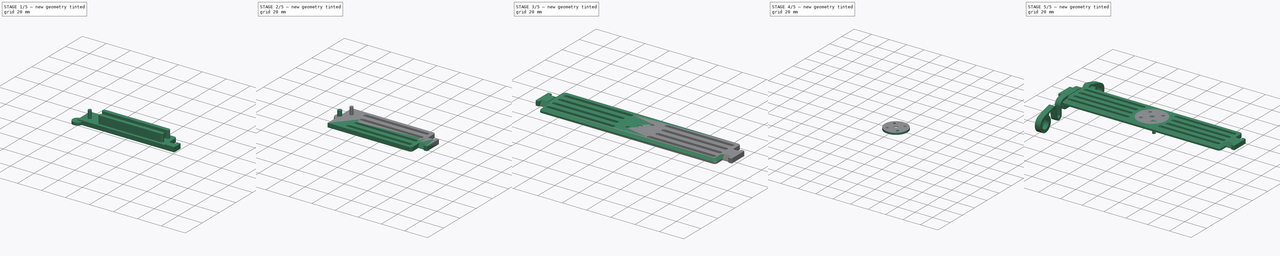
[diagram: build sequence overview — one tinted view per stage of 5, left to right]
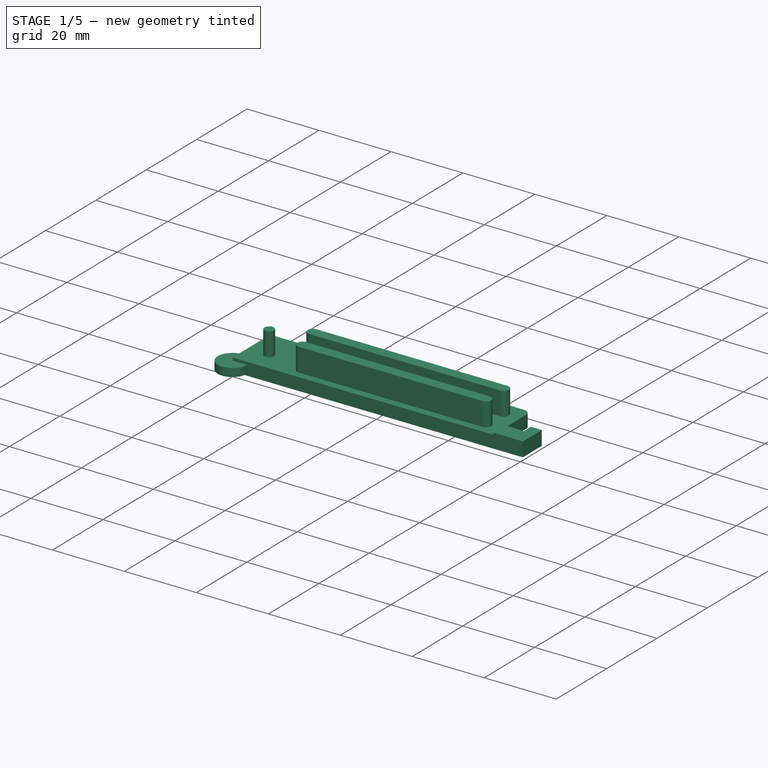
[diagram: stage 1 of 5 — iso view after this stage's code; geometry added in this stage tinted green]
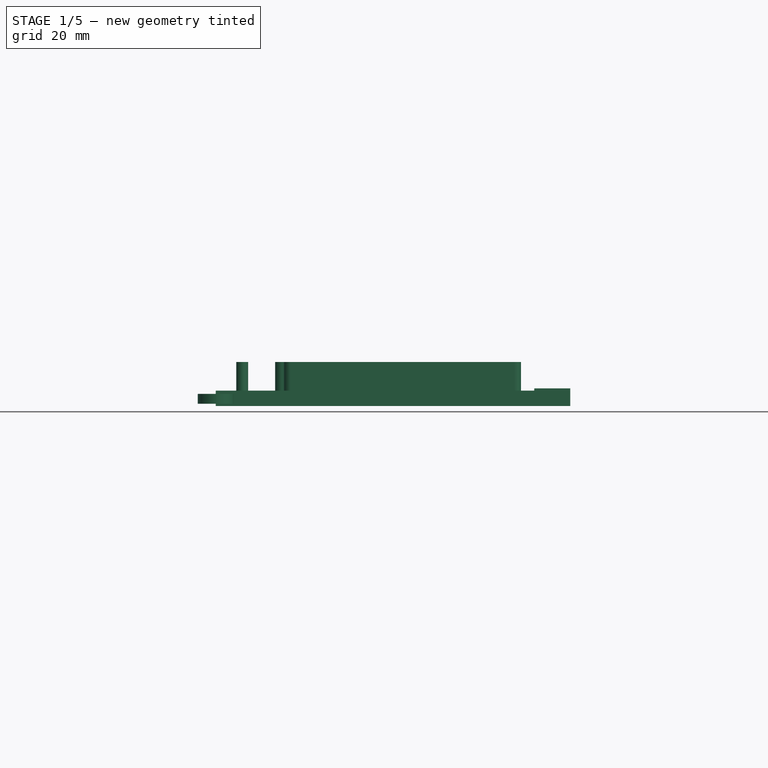
[diagram: stage 1 of 5 — front view after this stage's code; geometry added in this stage tinted green]
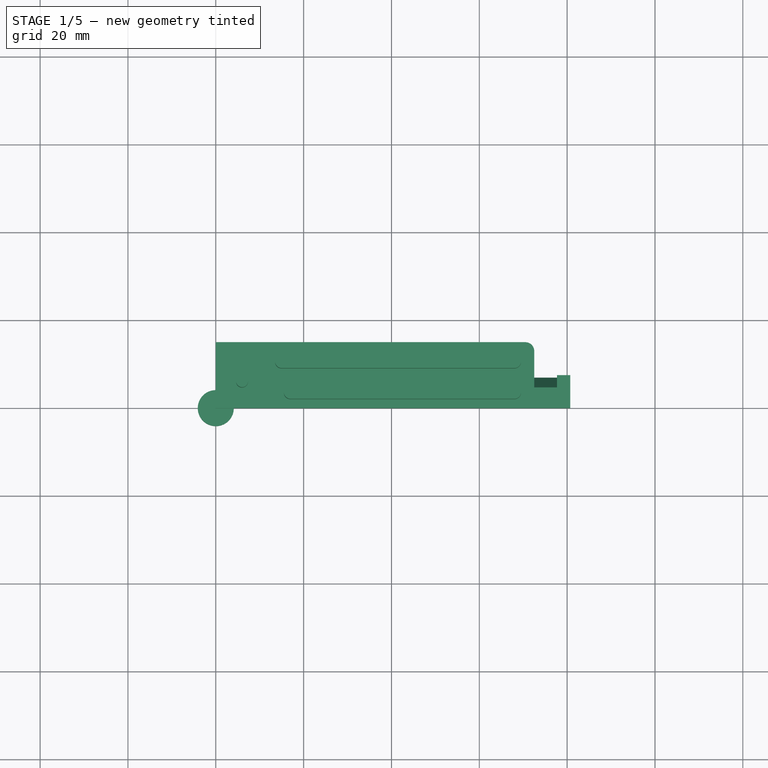
[diagram: stage 1 of 5 — top view after this stage's code; geometry added in this stage tinted green]
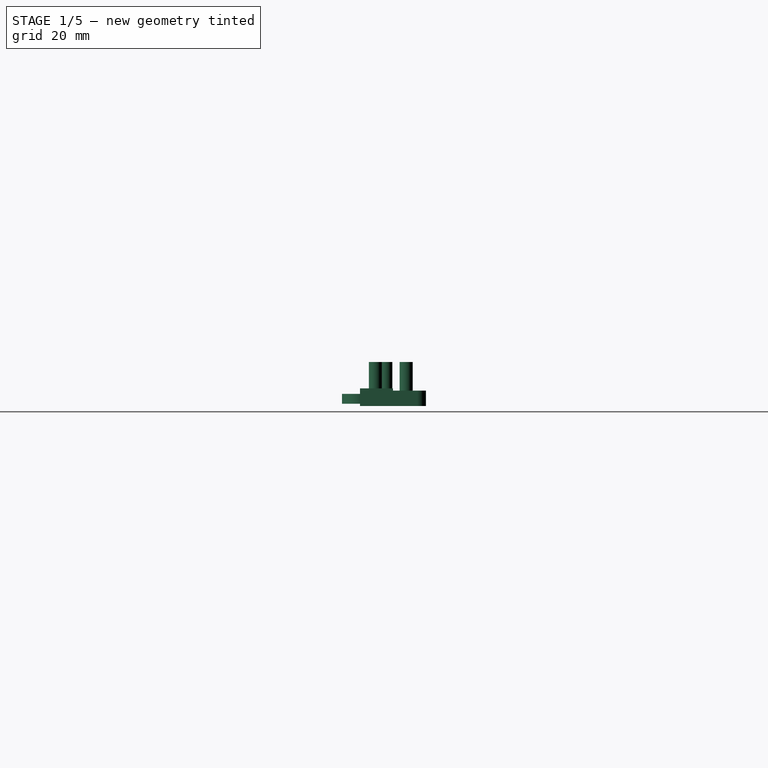
[diagram: stage 1 of 5 — right view after this stage's code; geometry added in this stage tinted green]
FCSTD DOCUMENT  (FreeCAD 0.16RUnknown)
Label: Adaptor
License: All rights reserved
LicenseURL: http://en.wikipedia.org/wiki/All_rights_reserved
objects: Part::FeaturePython×11, Part::Cut×9, Sketcher::SketchObject×6, Part::Mirroring×6, App::DocumentObjectGroup×4, PartDesign::Pad×3, Part::MultiFuse×3, PartDesign::Revolution×3, Part::Cylinder×3, Part::Feature×2, Part::Fillet×2, Spreadsheet::Sheet×1, PartDesign::Draft×1, Part::Chamfer×1, Part::MultiCommon×1
note: 57 computed .brp shape members not serialized (recipe doc carries the construction recipe); baked Part::Feature solids carry a one-line shape summary decoded from their .brp

FEATURE [Spreadsheet::Sheet] Spreadsheet  label="pars"
  cells = A1=Bolts and Nuts; B1=Value; D1=Components; E1=Value; A2=Thread Tight Tolerance (Radius, ratio); B2(ThrTighRatio)=0.96; D2=Tight Cilinder Tolerances (Radius, mm); E2(CilTight)=0.15; A3=Thread Tight Tolerance (Radius, mm); B3(ThrTightmm)=0.1; D3=Loose Cilinder Tolerances (Radius, mm); E3(CilLoose)=0.1; A5=Nut Slot Width Clearance (mm); B5(NutWidthClearmm)=0.1; A6=Nut Slot Thickess Clearance (mm); B6(NutThickClearmm)=0.1; A13=Particular parameters; B13=Value; A14=Plate Thickness; B14(PlateThick)=3.5; A15=Back Clearance; B15(BackClear)=0.2; A16=Lens Fit Tolerance; B16(LensFitTol)=0.1
FEATURE [Sketcher::SketchObject] Sketch002  label="Base"
  sketch-geometry (4):
    g0: LineSegment StartX=72.5 StartY=15 StartZ=0 EndX=0 EndY=15 EndZ=0
    g1: LineSegment StartX=0 StartY=15 StartZ=0 EndX=0 EndY=0 EndZ=0
    g2: LineSegment StartX=0 StartY=0 StartZ=0 EndX=72.5 EndY=0 EndZ=0
    g3: LineSegment StartX=72.5 StartY=0 StartZ=0 EndX=72.5 EndY=15 EndZ=0
  constraints (11):
    c: Coincident(g0,g1)
    c: Coincident(g1,g2)
    c: Coincident(g2,g3)
    c: Coincident(g3,g0)
    c: Horizontal(g0)
    c: Horizontal(g2)
    c: Vertical(g1)
    c: Vertical(g3)
    c: Coincident(g1,g-1)
    c: DistanceX(g2,g2) = 72.5
    c: DistanceY(g1,g1) = 15
FEATURE [PartDesign::Pad] Pad  label="Base001"
  Length = 3.5
  Length2 = 100
  Sketch = -> Sketch002
  Type = 0
  expr: Length = pars.PlateThick
FEATURE [PartDesign::Pad] Pad001  label="Fit001"
  Length = 4
  Length2 = 100
  Sketch = -> Sketch
  Type = 0
FEATURE [Part::Fillet] Fillet001  label="NiceFillet"
  Base = -> Pad
  Edges = 1 edges r=2: [Edge1]
FEATURE [Part::Feature] Clone001005001  label="PhoneArm001"
  Placement = pos=(72,0,-10) rot=(0,0,1;0rad)
  shape: bbox 14.86 x 94 x 27.68 mm, 99 faces (baked)
FEATURE [PartDesign::Draft] Draft001  label="FitDraft"
  Angle = 30
  Base = -> Pad001 [Face2]
  NeutralPlane = -> Pad001 [Face7]
  Reversed = true
FEATURE [Part::Cylinder] Cylinder001  label="LensFit"
  Angle = 360
  Height = 2.25
  Placement = pos=(0,0,0.5) rot=(0,0,1;0rad)
  Radius = 4.1
  expr: Radius = pars.LensFitTol + 4
FEATURE [Sketcher::SketchObject] Sketch006  label="MaterialReduction"
  sketch-geometry (9):
    g0: ArcOfCircle CenterX=15 CenterY=10.5 CenterZ=0 NormalX=0 NormalY=0 NormalZ=1 Radius=1.5 StartAngle=1.5708 EndAngle=4.71239
    g1: ArcOfCircle CenterX=68 CenterY=10.5 CenterZ=0 NormalX=0 NormalY=0 NormalZ=1 Radius=1.5 StartAngle=4.71239 EndAngle=7.85398
    g2: LineSegment StartX=15 StartY=9 StartZ=0 EndX=68 EndY=9 EndZ=0
    g3: LineSegment StartX=15 StartY=12 StartZ=0 EndX=68 EndY=12 EndZ=0
    g4: ArcOfCircle CenterX=17 CenterY=3.5 CenterZ=0 NormalX=0 NormalY=0 NormalZ=1 Radius=1.5 StartAngle=1.5708 EndAngle=4.71239
    g5: ArcOfCircle CenterX=68 CenterY=3.5 CenterZ=0 NormalX=0 NormalY=0 NormalZ=1 Radius=1.5 StartAngle=4.71239 EndAngle=7.85398
    g6: LineSegment StartX=17 StartY=2 StartZ=0 EndX=68 EndY=2 EndZ=0
    g7: LineSegment StartX=17 StartY=5 StartZ=0 EndX=68 EndY=5 EndZ=0
    g8: LineSegment [constr] StartX=68 StartY=10.5 StartZ=0 EndX=68 EndY=3.5 EndZ=0
  constraints (22):
    c: Tangent(g0,g3) = 1.5708
    c: Tangent(g0,g2) = -1.5708
    c: Tangent(g2,g1) = -1.5708
    c: Tangent(g3,g1) = 1.5708
    c: Horizontal(g2)
    c: Equal(g0,g1)
    c: Tangent(g4,g7) = 1.5708
    c: Tangent(g4,g6) = -1.5708
    c: Tangent(g6,g5) = -1.5708
    c: Tangent(g7,g5) = 1.5708
    c: Horizontal(g6)
    c: Equal(g4,g5)
    c: Equal(g1,g5)
    c: Vertical(g8)
    c: Coincident(g1,g8)
    c: Coincident(g5,g8)
    c: DistanceX(g5) = 68
    c: DistanceY(g5) = 3.5
    c: DistanceY(g8,g8) = 7
    c: Radius(g0) = 1.5
    c: DistanceX(g4) = 17
    c: DistanceX(g0) = 15
FEATURE [PartDesign::Pad] Pad002  label="MaterialReduction001"
  Length = 10
  Length2 = 100
  Sketch = -> Sketch006
  Type = 0
FEATURE [Part::FeaturePython] Clone001005007  label="Clone of LensFit"  # Draft clone (typed FeaturePython)
  Objects = -> [Cylinder001]
  Placement = pos=(0,0,0.5) rot=(0,0,1;0rad)
  Scale = (1,1,1)
FEATURE [Part::Cylinder] Cylinder002  label="DIN913"
  Angle = 360
  Height = 10
  Radius = 1.35
  expr: Radius = 1.5 - pars.CilTight
FEATURE [App::DocumentObjectGroup] Group001  label="Component_src"
  Group = -> [Revolution001,Revolution002,Cylinder002]
FEATURE [Part::FeaturePython] Clone001005008  label="Clone of DIN913"  # Draft clone (typed FeaturePython)
  Objects = -> [Cylinder002]
  Placement = pos=(6,6,0) rot=(0,0,1;0rad)
  Scale = (1,1,1)
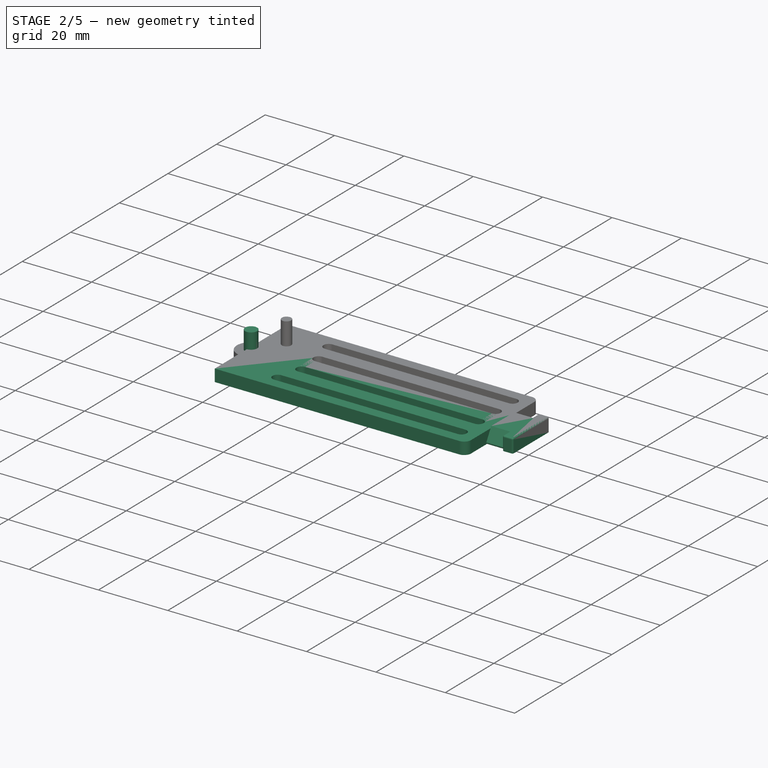
[diagram: stage 2 of 5 — iso view after this stage's code; geometry added in this stage tinted green]
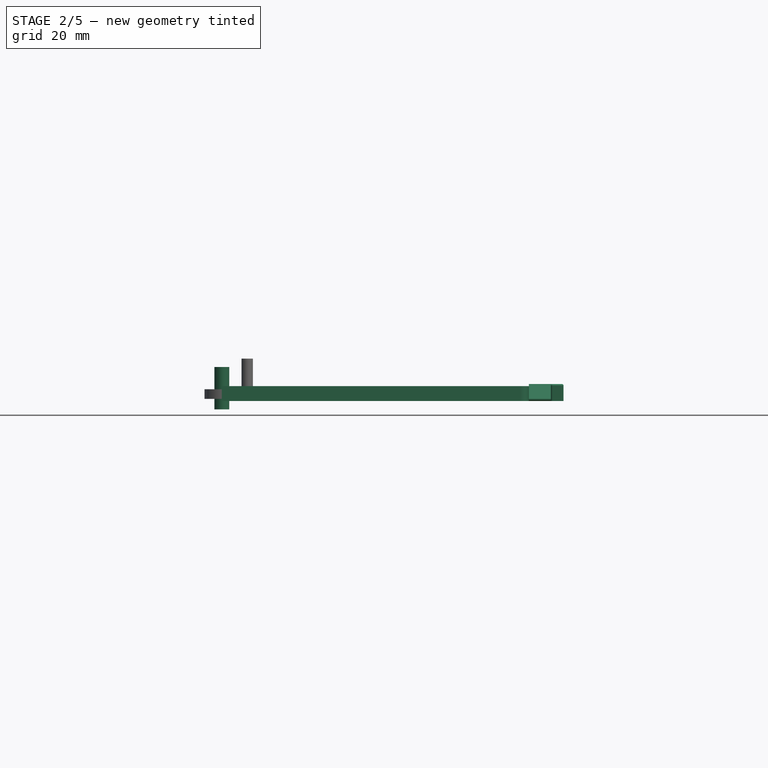
[diagram: stage 2 of 5 — front view after this stage's code; geometry added in this stage tinted green]
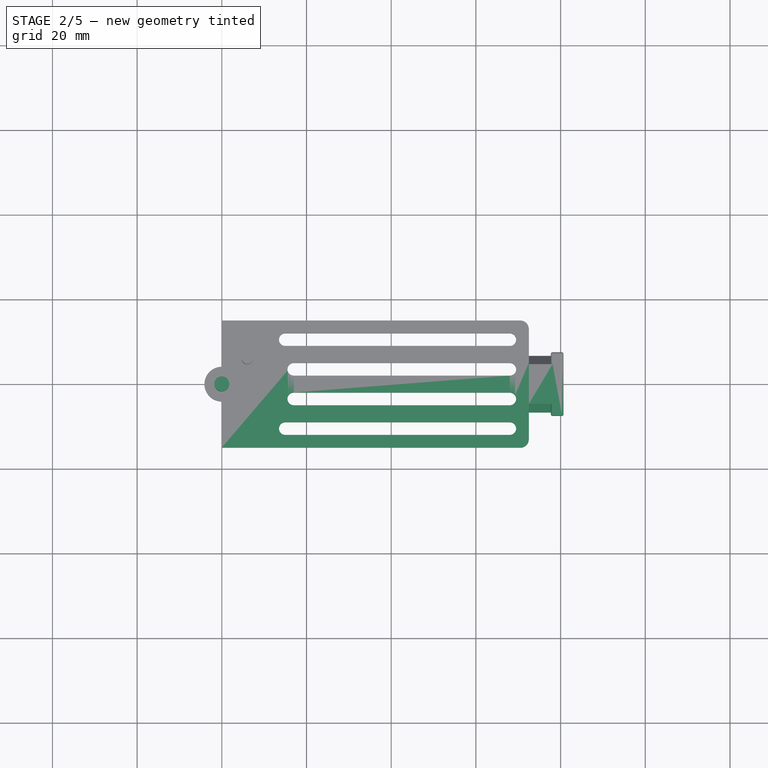
[diagram: stage 2 of 5 — top view after this stage's code; geometry added in this stage tinted green]
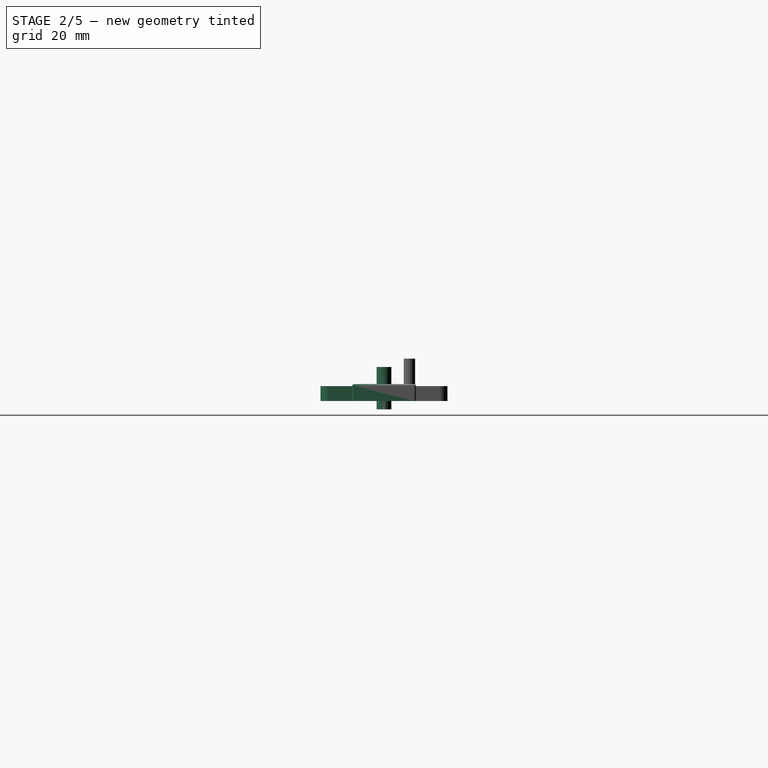
[diagram: stage 2 of 5 — right view after this stage's code; geometry added in this stage tinted green]
FEATURE [Part::Fillet] Fillet  label="FitFillet"
  Base = -> Draft001
  Edges = 6 edges r=0.4: [Edge6,Edge8,Edge10,Edge11,Edge13,Edge16]
FEATURE [Part::MultiFuse] Fusion  label="PadAdd"
  Shapes = -> [Fillet001,Fillet]
FEATURE [Part::FeaturePython] refine  label="refine_PadAdd"  # WARN: FeaturePython — macro-defined, semantics opaque (R4)
  Base = -> Fusion
FEATURE [Part::Cylinder] Cylinder  label="Channel"
  Angle = 360
  Height = 10
  Placement = pos=(0,0,-2) rot=(0,0,1;0rad)
  Radius = 1.75
FEATURE [Part::Cut] Cut007  label="MRCut"
  Base = -> refine
  Tool = -> Pad002
FEATURE [Part::Mirroring] Part__Mirroring010  label="MRCut (Mirror #7)"
  Base = (0,0,0)
  Normal = (0,1,0)
  Source = -> Cut007
FEATURE [Part::MultiFuse] Fusion007  label="YMirror"
  Shapes = -> [Part__Mirroring010,Cut007]
FEATURE [Part::FeaturePython] refine001  label="refine_YMirror"  # WARN: FeaturePython — macro-defined, semantics opaque (R4)
  Base = -> Fusion007
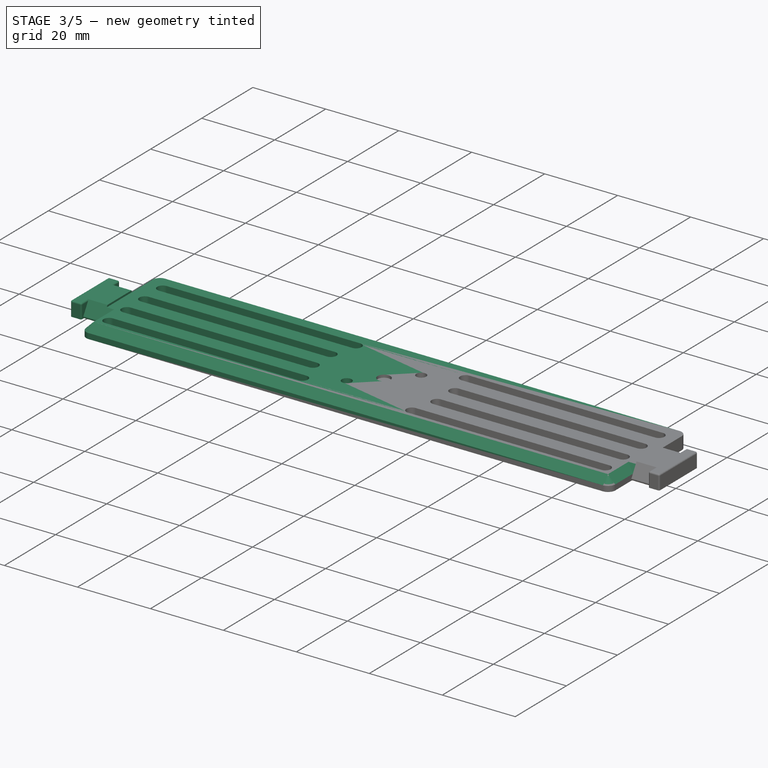
[diagram: stage 3 of 5 — iso view after this stage's code; geometry added in this stage tinted green]
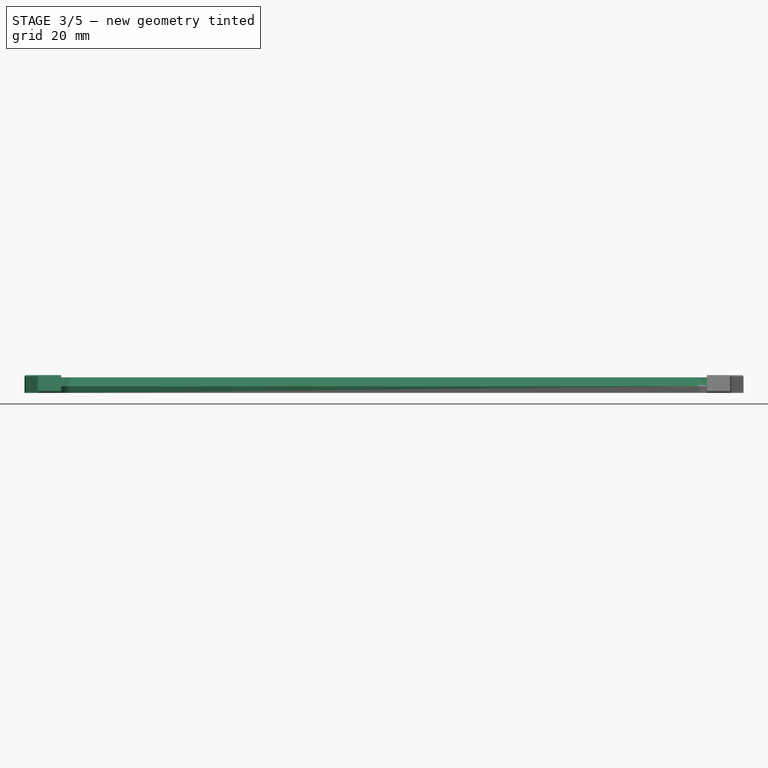
[diagram: stage 3 of 5 — front view after this stage's code; geometry added in this stage tinted green]
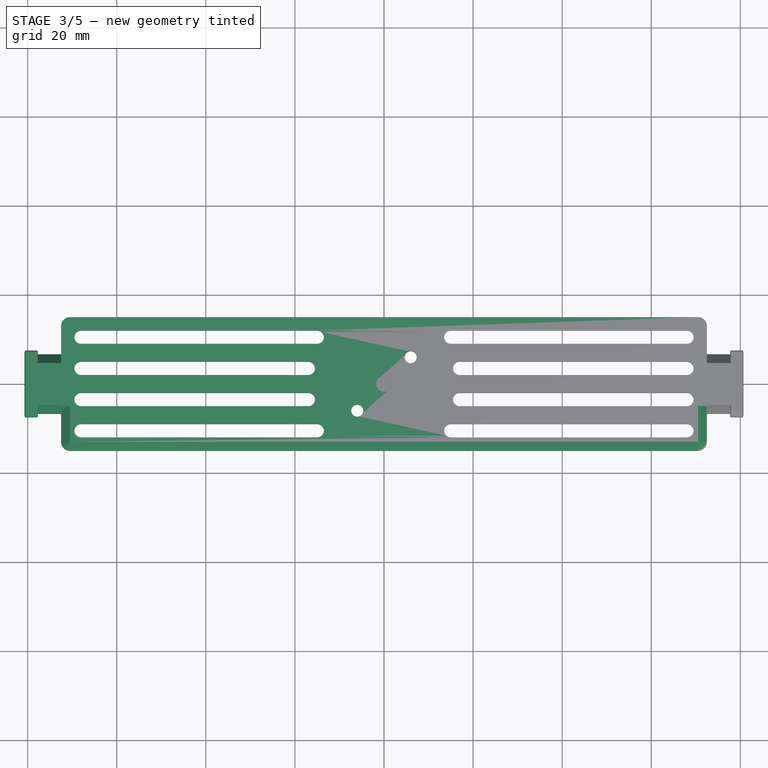
[diagram: stage 3 of 5 — top view after this stage's code; geometry added in this stage tinted green]
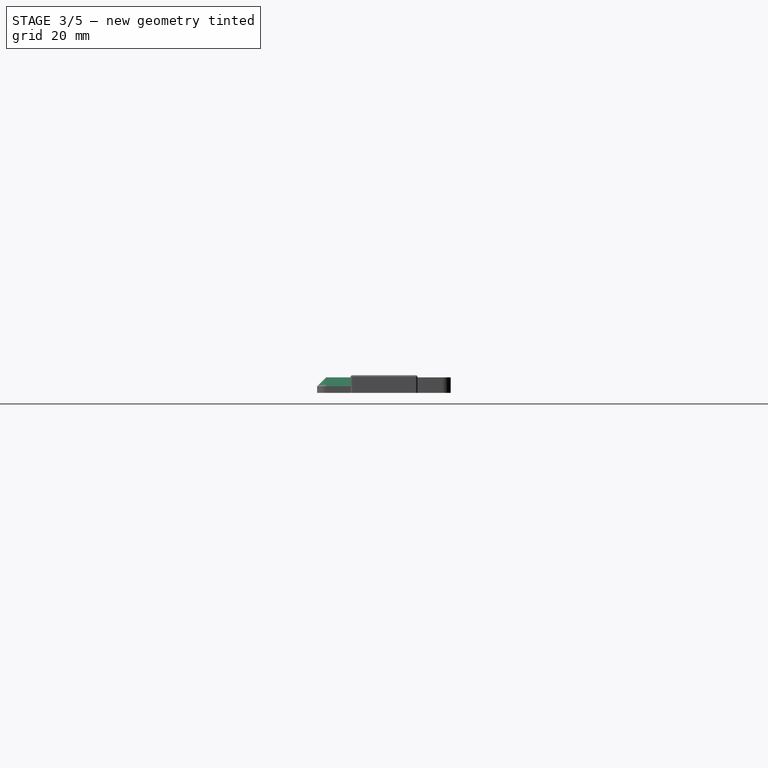
[diagram: stage 3 of 5 — right view after this stage's code; geometry added in this stage tinted green]
FEATURE [Part::Chamfer] Chamfer001  label="FitChamfer"
  Base = -> refine001
  Edges = 1 edges r=2: [Edge4]
FEATURE [Part::Mirroring] Part__Mirroring006  label="FitChamfer (Mirror #5)"
  Base = (0,0,0)
  Normal = (1,0,0)
  Source = -> Chamfer001
FEATURE [Part::MultiFuse] Fusion006  label="XMirror"
  Shapes = -> [Chamfer001,Part__Mirroring006]
FEATURE [Part::FeaturePython] refine002  label="refine_XMirror"  # WARN: FeaturePython — macro-defined, semantics opaque (R4)
  Base = -> Fusion006
FEATURE [Part::Cut] Cut  label="ChannelCut"
  Base = -> refine002
  Tool = -> Cylinder
FEATURE [Part::Mirroring] Part__Mirroring008  label="Clone of DIN7991M3Bolt001 (Mirror #5)"
  Base = (0,0,0)
  Normal = (0,1,0)
  Source = -> Clone001005008
FEATURE [Part::Mirroring] Part__Mirroring009  label="Clone of DIN7991M3Bolt001 (Mirror #6)"
  Base = (0,0,0)
  Normal = (1,0,0)
  Source = -> Part__Mirroring008
FEATURE [Part::Cut] Cut001
  Base = -> Cut
  Tool = -> Clone001005008
FEATURE [Part::Cut] Cut002
  Base = -> Cut001
  Tool = -> Part__Mirroring009
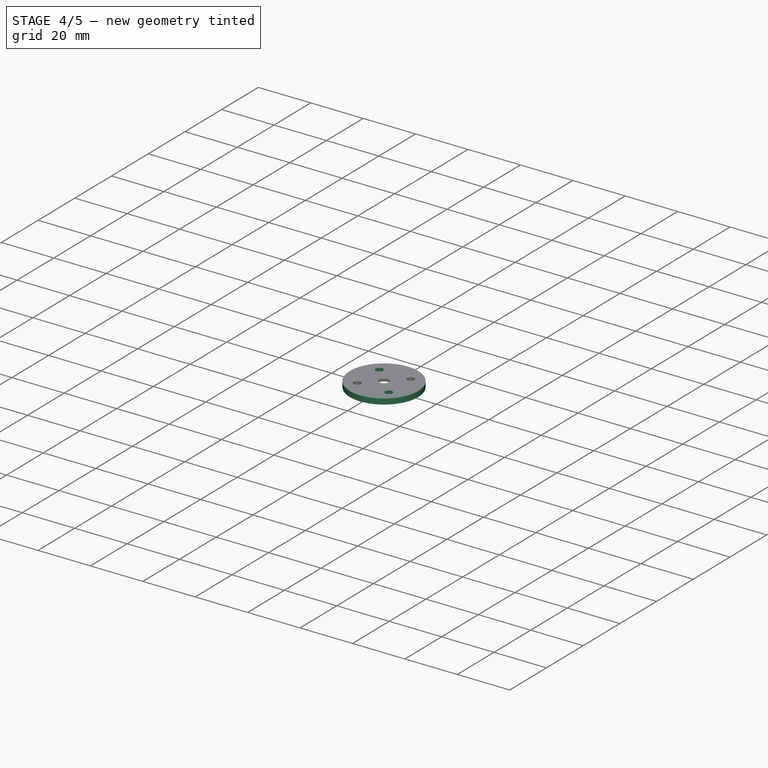
[diagram: stage 4 of 5 — iso view after this stage's code; geometry added in this stage tinted green]
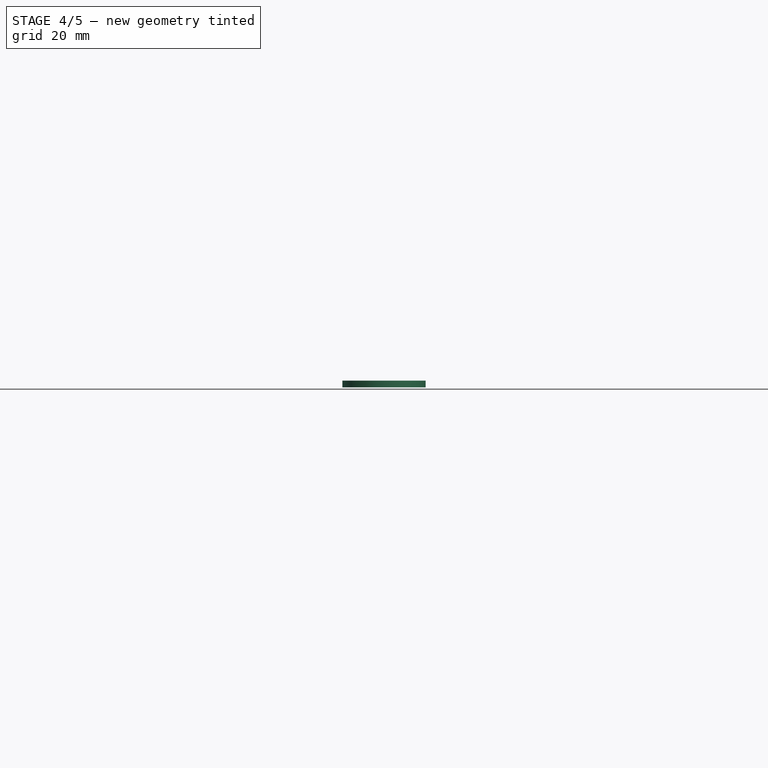
[diagram: stage 4 of 5 — front view after this stage's code; geometry added in this stage tinted green]
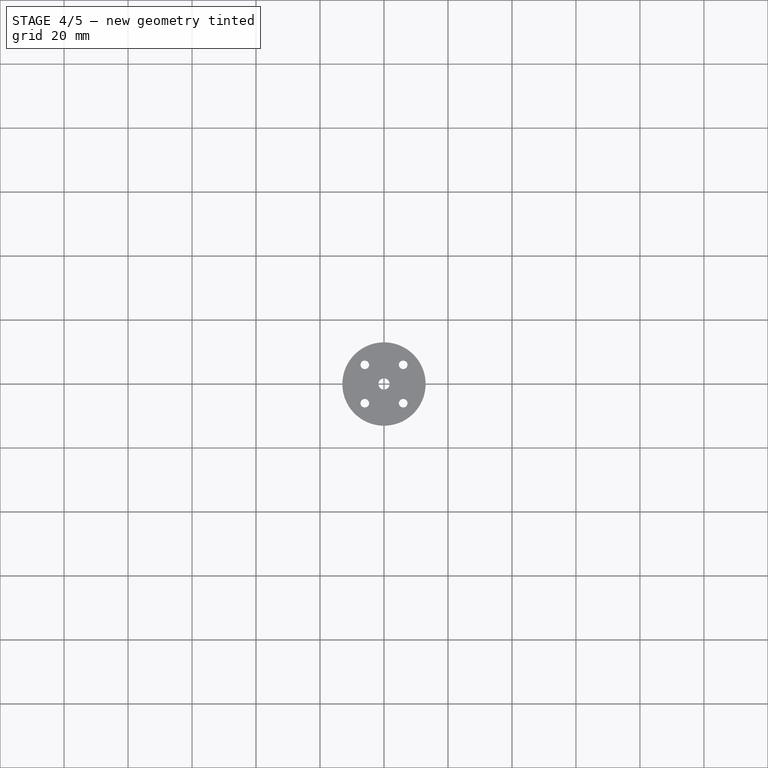
[diagram: stage 4 of 5 — top view after this stage's code; geometry added in this stage tinted green]
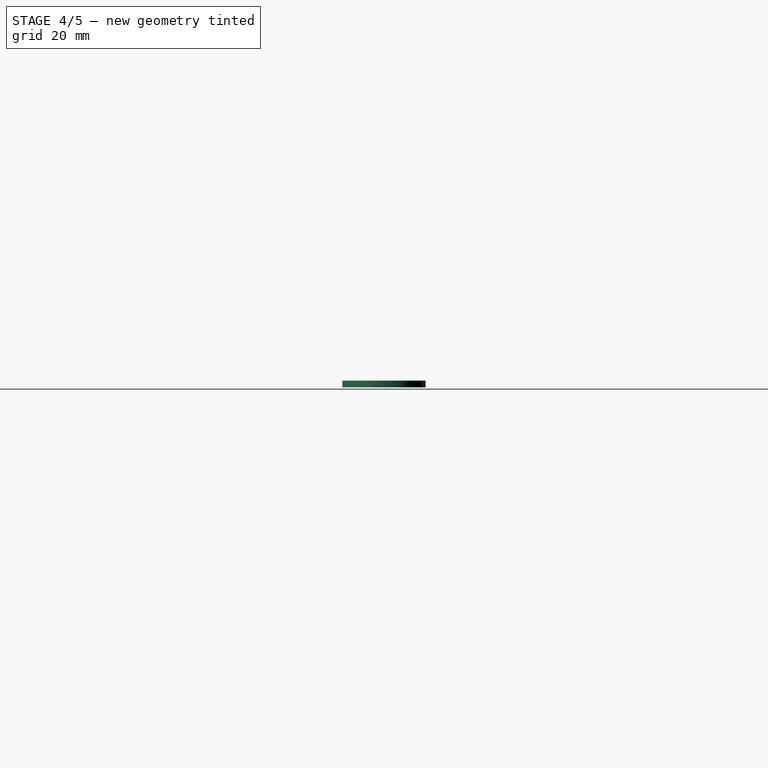
[diagram: stage 4 of 5 — right view after this stage's code; geometry added in this stage tinted green]
FEATURE [App::DocumentObjectGroup] Group  label="Reference"
  Group = -> [Clone001001,Part__Mirroring,Clone001005001,Revolution,Clone001005002]
FEATURE [Sketcher::SketchObject] Sketch004  label="LowerLidCut"
  Placement = pos=(0,0,0) rot=(1,0,0;1.5708rad)
  expr: Constraints[10] = 1.5 - pars.LensFitTol
  sketch-geometry (4):
    g0: LineSegment StartX=13 StartY=1.4 StartZ=0 EndX=0 EndY=1.4 EndZ=0
    g1: LineSegment StartX=0 StartY=1.4 StartZ=0 EndX=0 EndY=4.68954 EndZ=0
    g2: LineSegment StartX=0 StartY=4.68954 StartZ=0 EndX=13 EndY=4.68954 EndZ=0
    g3: LineSegment StartX=13 StartY=4.68954 StartZ=0 EndX=13 EndY=1.4 EndZ=0
  constraints (11):
    c: Coincident(g0,g1)
    c: Coincident(g1,g2)
    c: Coincident(g2,g3)
    c: Coincident(g3,g0)
    c: Horizontal(g0)
    c: Horizontal(g2)
    c: Vertical(g1)
    c: Vertical(g3)
    c: PointOnObject(g1,g-2)
    c: DistanceX(g2,g2) = 13
    c: DistanceY(g0) = 1.4
FEATURE [PartDesign::Revolution] Revolution001  label="LowerLidCut001"
  Angle = 360
  Axis = (0,0,1)
  Base = (0,0,0)
  Placement = pos=(0,0,0) rot=(1,0,0;1.5708rad)
  ReferenceAxis = -> Sketch004 [V_Axis]
  Reversed = true
  Sketch = -> Sketch004
FEATURE [Part::FeaturePython] Clone001005004  label="Clone of LowerLidCut001"  # Draft clone (typed FeaturePython)
  Objects = -> [Revolution001]
  Placement = pos=(0,0,0) rot=(1,0,0;1.5708rad)
  Scale = (1,1,1)
FEATURE [Part::Mirroring] Part__Mirroring007  label="Clone of DIN7991M3Bolt001 (Mirror #4)"
  Base = (0,0,0)
  Normal = (1,0,0)
  Source = -> Clone001005008
FEATURE [Part::Cut] Cut003
  Base = -> Cut002
  Tool = -> Part__Mirroring007
FEATURE [Part::Cut] Cut004  label="HardwareCuts"
  Base = -> Cut003
  Tool = -> Part__Mirroring008
FEATURE [App::DocumentObjectGroup] Group002  label="src"
  Group = -> [Pad,Pad001,Fusion,Draft001,Cut006]
FEATURE [Part::FeaturePython] Clone001005006  label="Clone of HardwareCuts"  # Draft clone (typed FeaturePython)
  Objects = -> [Cut004]
  Scale = (1,1,1)
FEATURE [Part::MultiCommon] Common  label="LidCommon"
  Shapes = -> [Clone001005004,Clone001005006]
FEATURE [Part::Cut] Cut008  label="LidFit"
  Base = -> Common
  Tool = -> Clone001005007
FEATURE [App::DocumentObjectGroup] Group003  label="Lid_src"
  Group = -> [Cut008]
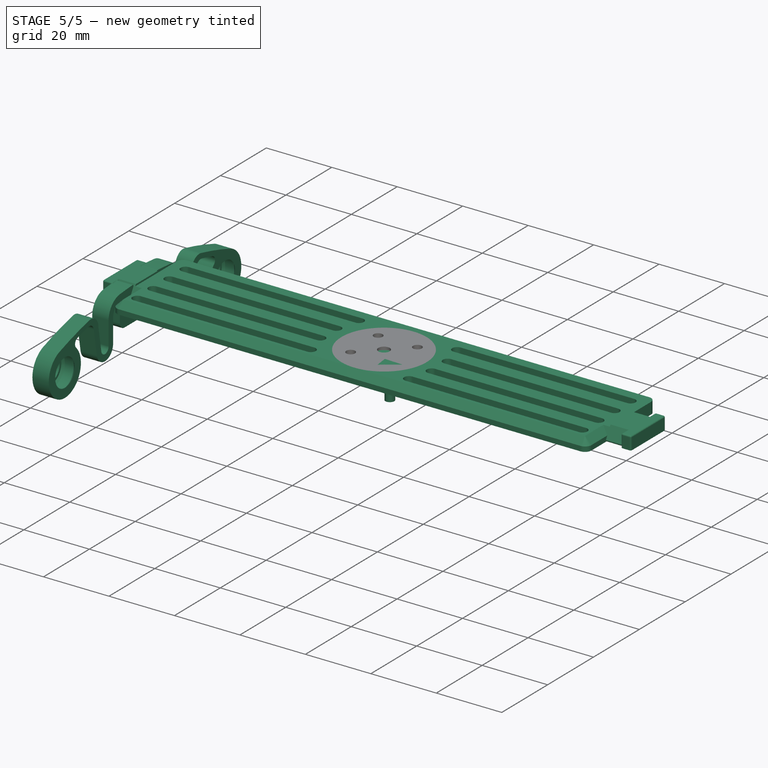
[diagram: stage 5 of 5 — iso view after this stage's code; geometry added in this stage tinted green]
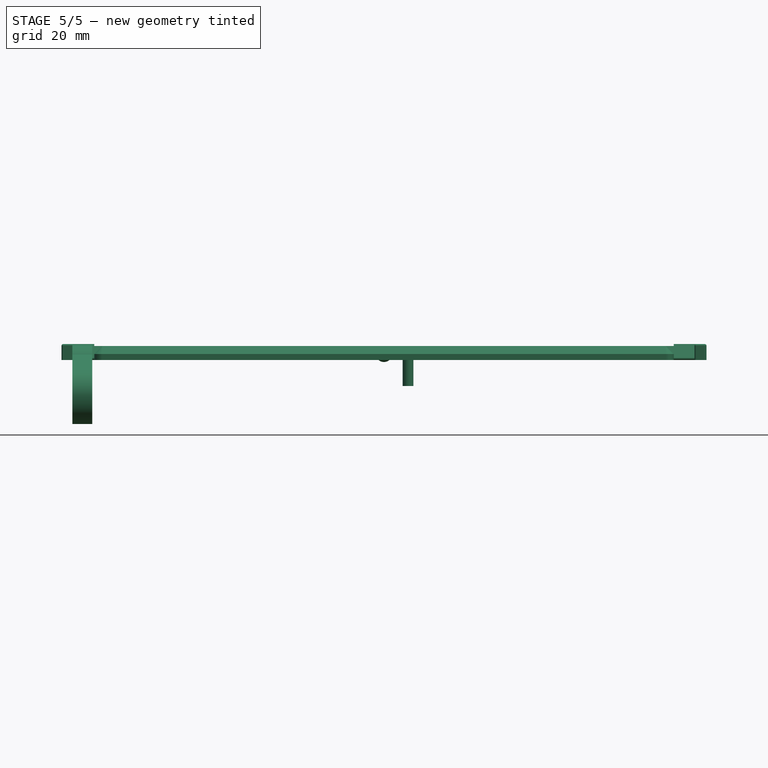
[diagram: stage 5 of 5 — front view after this stage's code; geometry added in this stage tinted green]
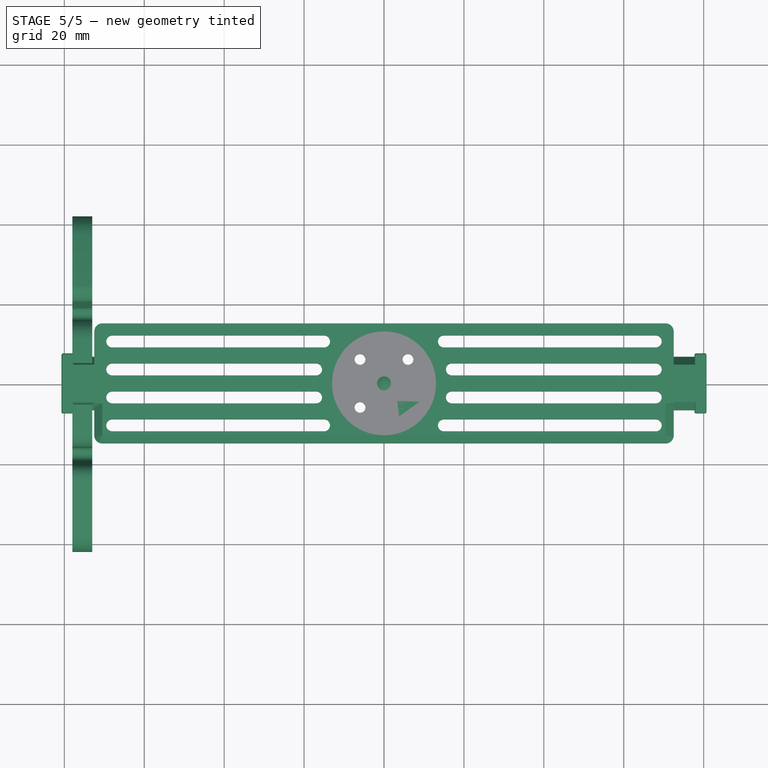
[diagram: stage 5 of 5 — top view after this stage's code; geometry added in this stage tinted green]
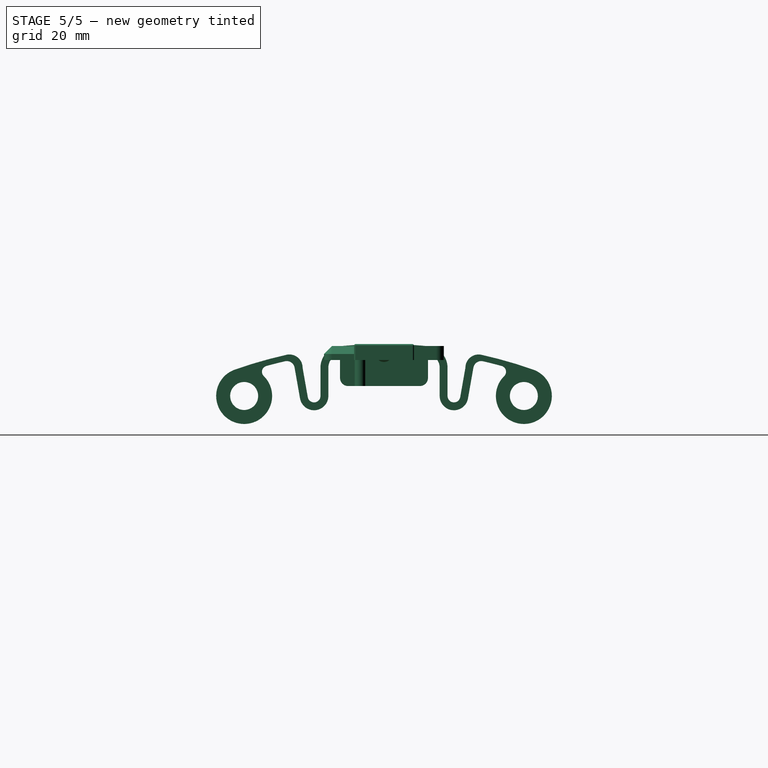
[diagram: stage 5 of 5 — right view after this stage's code; geometry added in this stage tinted green]
FEATURE [Sketcher::SketchObject] Sketch  label="Fit"
  expr: Constraints[15] = 5 + pars.BackClear
  sketch-geometry (6):
    g0: LineSegment StartX=72.5 StartY=0 StartZ=0 EndX=72.5 EndY=7 EndZ=0
    g1: LineSegment StartX=72.5 StartY=7 StartZ=0 EndX=77.7 EndY=7 EndZ=0
    g2: LineSegment StartX=77.7 StartY=7 StartZ=0 EndX=77.7 EndY=7.5 EndZ=0
    g3: LineSegment StartX=77.7 StartY=7.5 StartZ=0 EndX=80.7 EndY=7.5 EndZ=0
    g4: LineSegment StartX=80.7 StartY=7.5 StartZ=0 EndX=80.7 EndY=0 EndZ=0
    g5: LineSegment StartX=80.7 StartY=0 StartZ=0 EndX=72.5 EndY=0 EndZ=0
  constraints (18):
    c: Coincident(g0,g1)
    c: Coincident(g1,g2)
    c: Coincident(g2,g3)
    c: Coincident(g3,g4)
    c: Coincident(g4,g5)
    c: Coincident(g5,g0)
    c: PointOnObject(g0,g-1)
    c: Horizontal(g5)
    c: Horizontal(g1)
    c: Horizontal(g3)
    c: Vertical(g0)
    c: Vertical(g2)
    c: Vertical(g4)
    c: DistanceX(g0) = 72.5
    c: DistanceY(g0,g0) = 7
    c: DistanceX(g1,g1) = 5.2
    c: DistanceX(g3,g3) = 3
    c: DistanceY(g4,g4) = 7.5
FEATURE [Part::Feature] Clone001001  label="LeafTest623ZZ001"
  Placement = pos=(73,0,12) rot=(-0.57735,0.57735,-0.57735;2.0944rad)
  shape: bbox 5 x 84 x 19.87 mm, 56 faces (baked)
FEATURE [Part::Mirroring] Part__Mirroring  label="LeafTest623ZZ001 (Mirror #3)"
  Base = (0,0,0)
  Normal = (1,0,0)
  Source = -> Clone001001
FEATURE [Sketcher::SketchObject] Sketch003  label="LA0704Profile"
  Placement = pos=(0,0,0) rot=(1,0,0;1.5708rad)
  sketch-geometry (7):
    g0: LineSegment StartX=-0.5 StartY=4 StartZ=0 EndX=0.5 EndY=4 EndZ=0
    g1: LineSegment StartX=0.5 StartY=4 StartZ=0 EndX=0.5 EndY=1.75 EndZ=0
    g2: ArcOfCircle CenterX=-2.3125 CenterY=0 CenterZ=0 NormalX=0 NormalY=0 NormalZ=1 Radius=3.3125 StartAngle=0 EndAngle=0.556599
    g3: LineSegment StartX=-0.5 StartY=4 StartZ=0 EndX=-0.5 EndY=1.75 EndZ=0
    g4: ArcOfCircle CenterX=0.53125 CenterY=0 CenterZ=0 NormalX=0 NormalY=0 NormalZ=1 Radius=2.03125 StartAngle=2.1033 EndAngle=3.14159
    g5: LineSegment StartX=-1.5 StartY=0 StartZ=0 EndX=1 EndY=0 EndZ=0
    g6: LineSegment [constr] StartX=-0.5 StartY=1.75 StartZ=0 EndX=0.5 EndY=1.75 EndZ=0
  constraints (21):
    c: Coincident(g0,g1)
    c: Coincident(g0,g3)
    c: Coincident(g3,g4)
    c: Coincident(g1,g2)
    c: Coincident(g2,g5)
    c: Coincident(g4,g5)
    c: Horizontal(g5)
    c: PointOnObject(g2,g-1)
    c: PointOnObject(g4,g-1)
    c: PointOnObject(g2,g-1)
    c: Vertical(g3)
    c: Vertical(g1)
    c: Symmetric(g0,g0,g-2)
    c: DistanceY(g0) = 4
    c: DistanceX(g0,g0) = 1
    c: DistanceY(g1) = 1.75
    c: Coincident(g6,g3)
    c: Horizontal(g6)
    c: Coincident(g1,g6)
    c: DistanceX(g4) = -1.5
    c: DistanceX(g2) = 1
FEATURE [PartDesign::Revolution] Revolution  label="LA0704"
  Angle = 360
  Axis = (1,0,0)
  Base = (0,0,0)
  Placement = pos=(0,0,0) rot=(1,0,0;1.5708rad)
  ReferenceAxis = -> Sketch003 [H_Axis]
  Sketch = -> Sketch003
FEATURE [Part::FeaturePython] Clone001005002  label="Clone of LA0704"  # Draft clone (typed FeaturePython)
  Objects = -> [Revolution]
  Placement = pos=(0,0,1) rot=(0,-1,0;1.5708rad)
  Scale = (1,1,1)
FEATURE [Sketcher::SketchObject] Sketch005  label="DIN7991M3Bolt"
  Placement = pos=(0,0,0) rot=(1,0,0;1.5708rad)
  expr: Constraints[11] = 1.5 - pars.CilTight
  sketch-geometry (5):
    g0: LineSegment StartX=0 StartY=0 StartZ=0 EndX=3.15 EndY=0 EndZ=0
    g1: LineSegment StartX=3.15 StartY=0 StartZ=0 EndX=1.35 EndY=-1.8 EndZ=0
    g2: LineSegment StartX=1.35 StartY=-1.8 StartZ=0 EndX=1.35 EndY=-10 EndZ=0
    g3: LineSegment StartX=1.35 StartY=-10 StartZ=0 EndX=0 EndY=-10 EndZ=0
    g4: LineSegment StartX=0 StartY=-10 StartZ=0 EndX=0 EndY=0 EndZ=0
  constraints (14):
    c: Coincident(g0,g1)
    c: Coincident(g1,g2)
    c: Coincident(g2,g3)
    c: Coincident(g3,g4)
    c: Coincident(g0,g4)
    c: Horizontal(g0)
    c: Horizontal(g3)
    c: Vertical(g4)
    c: Vertical(g2)
    c: Angle(g0,g1) = 0.785398
    c: Coincident(g0,g-1)
    c: DistanceX(g3,g3) = 1.35
    c: DistanceY(g1,g-1) = 1.8
    c: DistanceY(g4,g4) = 10
FEATURE [PartDesign::Revolution] Revolution002  label="DIN7991M3Bolt001"
  Angle = 360
  Axis = (0,0,1)
  Base = (0,0,0)
  Placement = pos=(0,0,0) rot=(1,0,0;1.5708rad)
  ReferenceAxis = -> Sketch005 [V_Axis]
  Reversed = true
  Sketch = -> Sketch005
FEATURE [Part::FeaturePython] Clone001005003  label="Clone of DIN7991M3Bolt001"  # Draft clone (typed FeaturePython)
  Objects = -> [Revolution002]
  Placement = pos=(6,-6,3.5) rot=(1,0,0;1.5708rad)
  Scale = (1,1,1)
  expr: Placement.Base.z = Base001.Length
FEATURE [Part::FeaturePython] Clone001005005  label="Clone of LowerLidCut002"  # Draft clone (typed FeaturePython)
  Objects = -> [Revolution001]
  Placement = pos=(0,0,0) rot=(1,0,0;1.5708rad)
  Scale = (1,1,1)
FEATURE [Part::Cut] Cut005  label="LidCut"
  Base = -> Cut004
  Tool = -> Clone001005005
FEATURE [Part::Cut] Cut006  label="FitCut"
  Base = -> Cut005
  Tool = -> Cylinder001
FEATURE [Part::FeaturePython] Clone  label="LensMount"  # Draft clone (typed FeaturePython)
  Objects = -> [Cut006]
  Scale = (1,1,1)
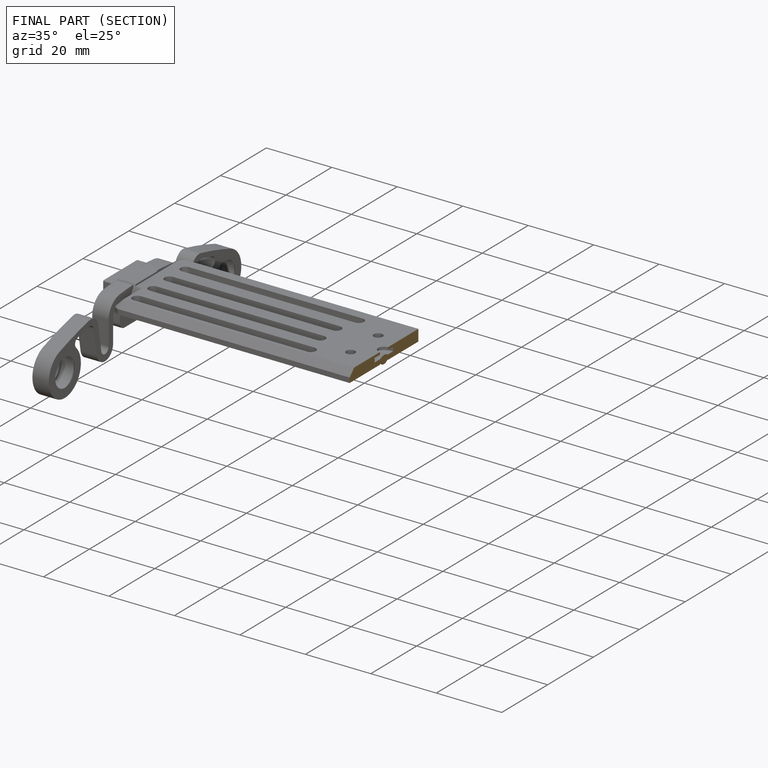
[diagram: finished part — half-section view (interior)]
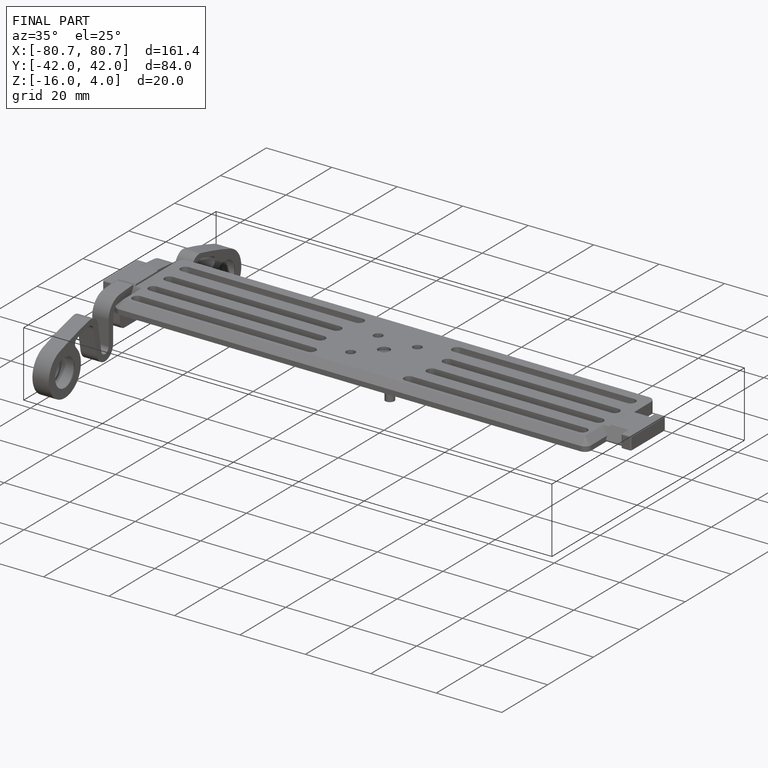
[diagram: finished part — iso view with bounding-box wireframe]
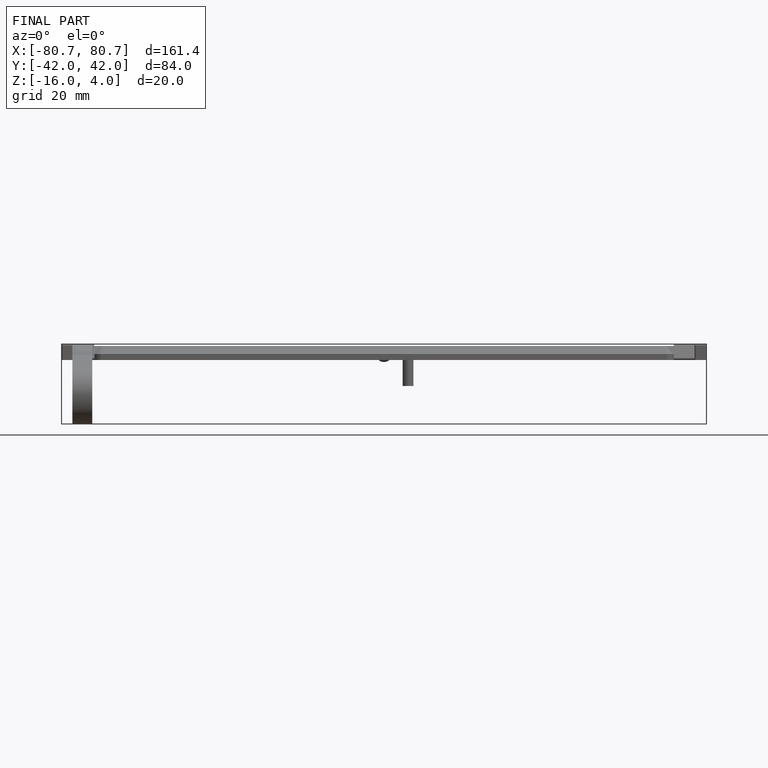
[diagram: finished part — front view with bounding-box wireframe]
